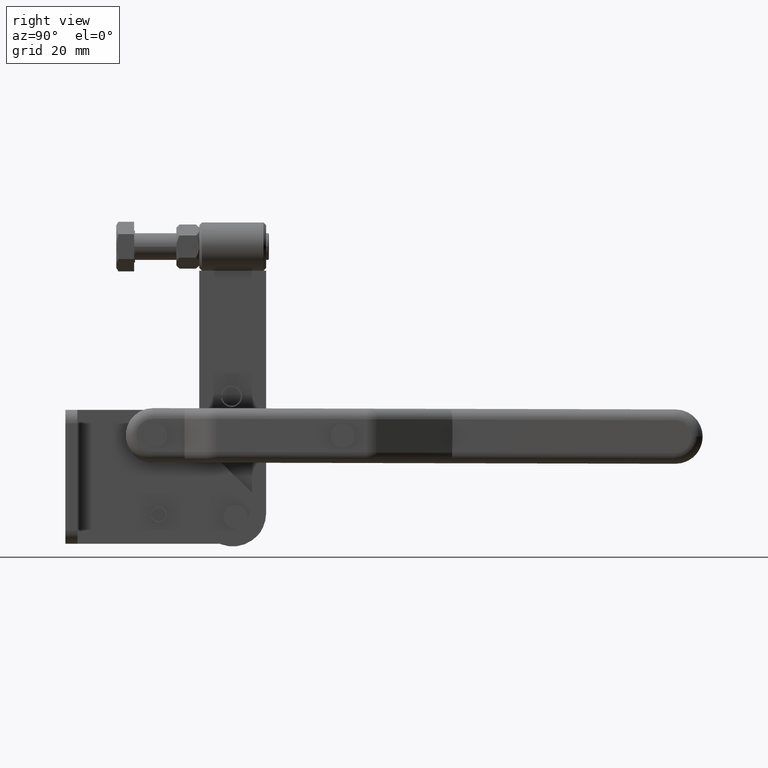
[diagram: clean part render]
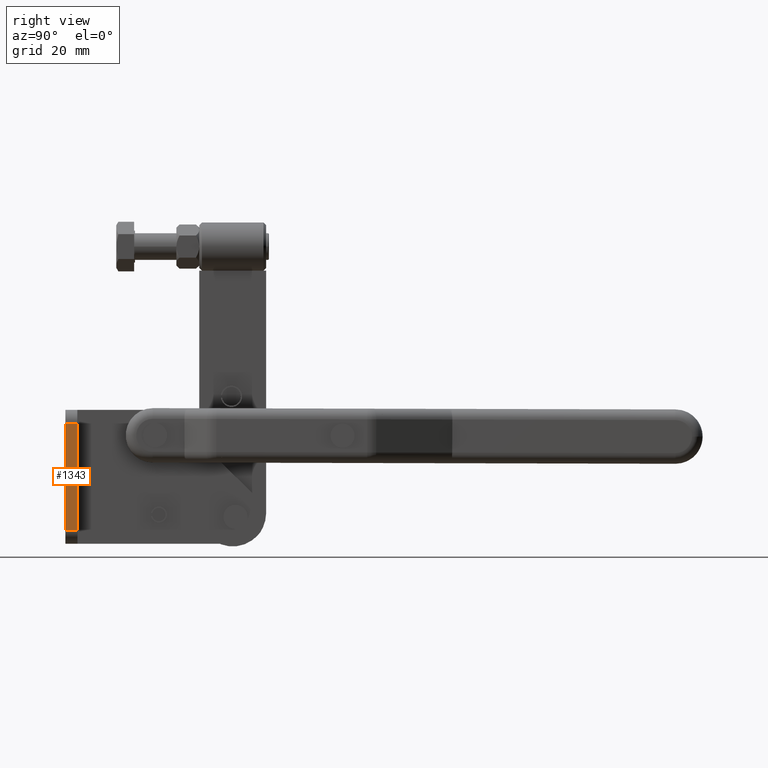
[diagram: same view with one face highlighted and labeled with its STEP entity id]
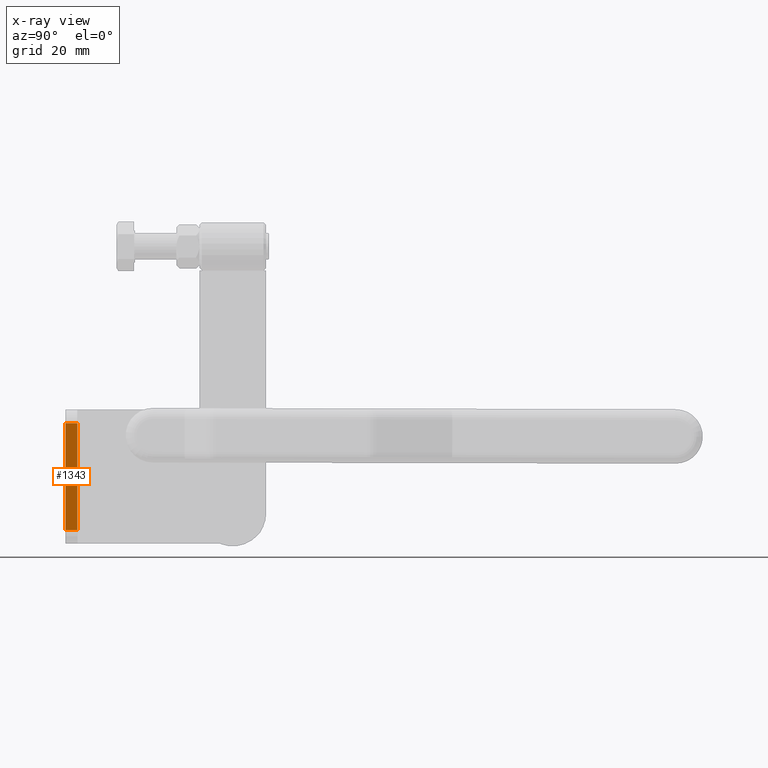
[diagram: x-ray of the same camera — body ghosted, the highlighted face saturated]
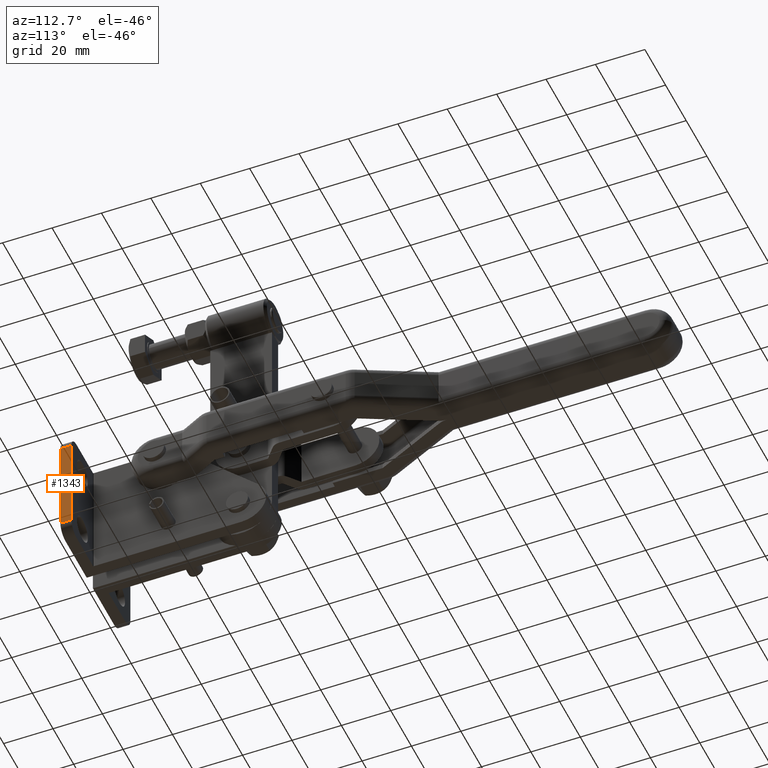
[diagram: same view with one face highlighted and labeled with its STEP entity id]
A machine part, right view. The second image highlights one B-rep face of the part: STEP entity #1343.
The next image is the same camera in x-ray: the body ghosted, the highlighted face saturated — about 0% of this face is hidden behind the body in this view.
A second angle (auxiliary view) of the same face is appended — the face is thin or edge-on in the first view.
In plain terms, the highlighted planar face has unit normal (1, 0, -0).
Its self-contained STEP definition (entity closure, byte-faithful):
#1343 = ADVANCED_FACE ( 'NONE', ( #2157 ), #15509, .T. ) ;
#2157 = FACE_OUTER_BOUND ( 'NONE', #12722, .T. ) ;
#2368 = CARTESIAN_POINT ( 'NONE',  ( 28.50000000000000400, 196.2548230513962700, -45.00000000000000700 ) ) ;
#2590 = VERTEX_POINT ( 'NONE', #20972 ) ;
#2783 = VECTOR ( 'NONE', #20777, 1000.000000000000000 ) ;
#2869 = VECTOR ( 'NONE', #7821, 1000.000000000000000 ) ;
#3586 = VECTOR ( 'NONE', #4942, 1000.000000000000000 ) ;
#4942 = DIRECTION ( 'NONE',  ( -0.0000000000000000000, -1.000000000000000000, -0.0000000000000000000 ) ) ;
#5678 = ORIENTED_EDGE ( 'NONE', *, *, #8709, .T. ) ;
#6351 = ORIENTED_EDGE ( 'NONE', *, *, #13095, .T. ) ;
#7083 = CARTESIAN_POINT ( 'NONE',  ( 28.50000000000001100, 0.0000000000000000000, -5.000000000000000900 ) ) ;
#7821 = DIRECTION ( 'NONE',  ( -1.224606353822377300E-016, 0.0000000000000000000, -1.000000000000000000 ) ) ;
#8641 = CARTESIAN_POINT ( 'NONE',  ( 28.50000000000000400, 196.2548230513962700, -50.00000000000000000 ) ) ;
#8709 = EDGE_CURVE ( 'NONE', #13298, #12404, #12507, .T. ) ;
#8955 = VECTOR ( 'NONE', #12435, 1000.000000000000000 ) ;
#9829 = DIRECTION ( 'NONE',  ( -1.224606353822377300E-016, 0.0000000000000000000, -1.000000000000000000 ) ) ;
#11359 = ORIENTED_EDGE ( 'NONE', *, *, #17457, .F. ) ;
#11731 = LINE ( 'NONE', #19170, #2783 ) ;
#12404 = VERTEX_POINT ( 'NONE', #7083 ) ;
#12435 = DIRECTION ( 'NONE',  ( -0.0000000000000000000, 1.000000000000000000, -0.0000000000000000000 ) ) ;
#12507 = LINE ( 'NONE', #18364, #3586 ) ;
#12722 = EDGE_LOOP ( 'NONE', ( #11359, #5678, #20847, #6351 ) ) ;
#13095 = EDGE_CURVE ( 'NONE', #2590, #21454, #17945, .T. ) ;
#13298 = VERTEX_POINT ( 'NONE', #16431 ) ;
#13827 = EDGE_CURVE ( 'NONE', #12404, #2590, #20776, .T. ) ;
#15509 = PLANE ( 'NONE',  #21238 ) ;
#16253 = CARTESIAN_POINT ( 'NONE',  ( 28.50000000000000400, 0.0000000000000000000, -50.00000000000000000 ) ) ;
#16431 = CARTESIAN_POINT ( 'NONE',  ( 28.50000000000001100, 4.500000000000000000, -5.000000000000000900 ) ) ;
#17202 = DIRECTION ( 'NONE',  ( 1.000000000000000000, 0.0000000000000000000, -1.224606353822377300E-016 ) ) ;
#17457 = EDGE_CURVE ( 'NONE', #13298, #21454, #11731, .T. ) ;
#17945 = LINE ( 'NONE', #2368, #8955 ) ;
#18364 = CARTESIAN_POINT ( 'NONE',  ( 28.50000000000001100, 196.2548230513962700, -5.000000000000000900 ) ) ;
#19170 = CARTESIAN_POINT ( 'NONE',  ( 28.50000000000000400, 4.500000000000000000, -50.00000000000000000 ) ) ;
#20776 = LINE ( 'NONE', #16253, #2869 ) ;
#20777 = DIRECTION ( 'NONE',  ( -1.224606353822377300E-016, 0.0000000000000000000, -1.000000000000000000 ) ) ;
#20847 = ORIENTED_EDGE ( 'NONE', *, *, #13827, .T. ) ;
#20972 = CARTESIAN_POINT ( 'NONE',  ( 28.50000000000000400, 0.0000000000000000000, -45.00000000000000700 ) ) ;
#21238 = AXIS2_PLACEMENT_3D ( 'NONE', #8641, #17202, #9829 ) ;
#21454 = VERTEX_POINT ( 'NONE', #21482 ) ;
#21482 = CARTESIAN_POINT ( 'NONE',  ( 28.50000000000000400, 4.500000000000000000, -45.00000000000000700 ) ) ;